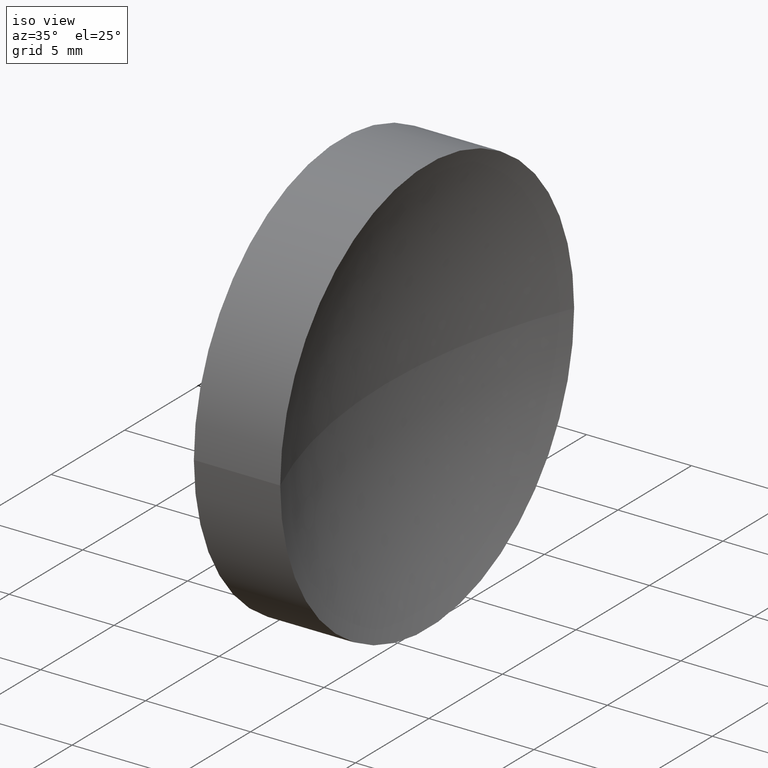
[diagram: clean part render]
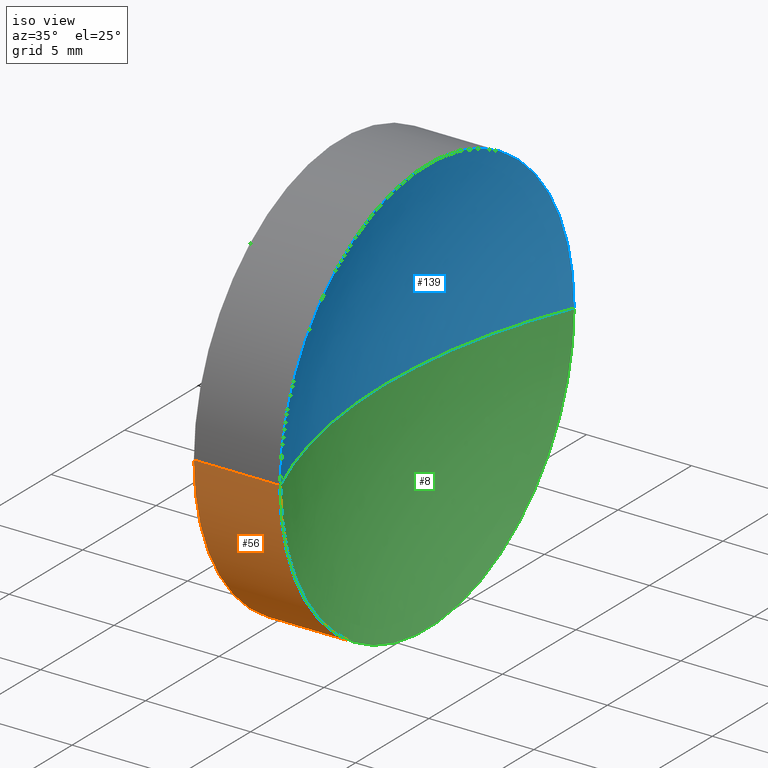
[diagram: same view with three faces highlighted in distinct colors, each labeled with its STEP entity id]
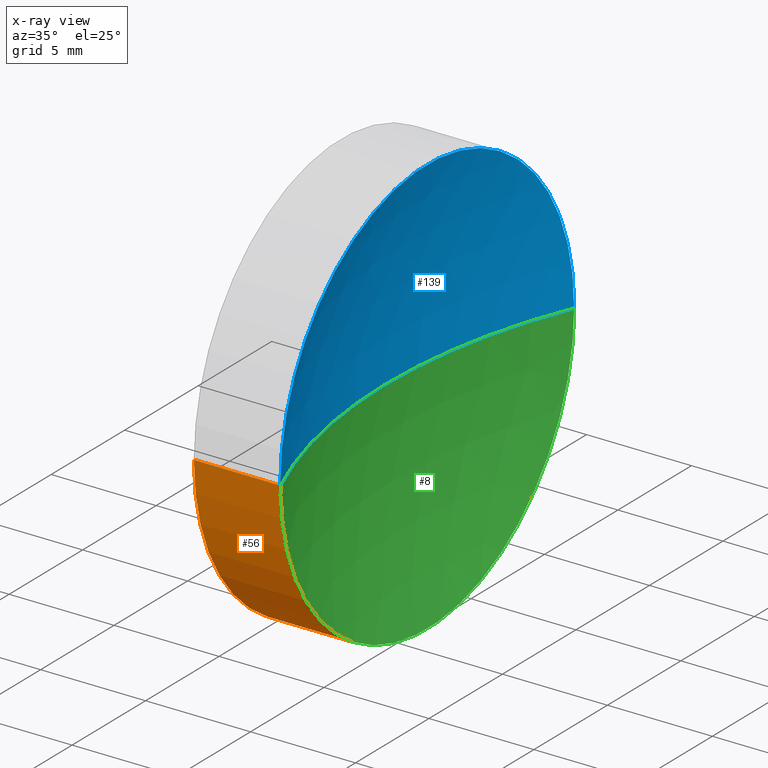
[diagram: x-ray of the same camera — body ghosted, the three highlighted faces saturated]
A machine part, iso view with three faces highlighted in distinct colors.
The next image is the same camera in x-ray (body ghosted, the three faces saturated) — at least one of them is partly hidden behind the body in this view.
Their STEP definitions:

[orange] entity #56 — the highlighted cylindrical surface (partial cylindrical patch) has radius 10 mm, axis along (-1, 0, -0).
#4 = EDGE_CURVE ( 'NONE', #126, #60, #68, .T. ) ;
#7 = LINE ( 'NONE', #50, #155 ) ;
#9 = DIRECTION ( 'NONE',  ( -1.000000000000000000, 8.116490868597533400E-016, -0.0000000000000000000 ) ) ;
#10 = CARTESIAN_POINT ( 'NONE',  ( 46.58547009932218000, 36.02329994089732400, 1.224646799147353500E-015 ) ) ;
#14 = CIRCLE ( 'NONE', #77, 10.00000000000000200 ) ;
#15 = AXIS2_PLACEMENT_3D ( 'NONE', #49, #133, #160 ) ;
#17 = EDGE_CURVE ( 'NONE', #147, #126, #14, .T. ) ;
#26 = DIRECTION ( 'NONE',  ( -1.000000000000000000, 8.116490868597533400E-016, -0.0000000000000000000 ) ) ;
#35 = EDGE_CURVE ( 'NONE', #121, #60, #70, .T. ) ;
#36 = DIRECTION ( 'NONE',  ( -1.000000000000000000, 8.116490868597533400E-016, -0.0000000000000000000 ) ) ;
#39 = CARTESIAN_POINT ( 'NONE',  ( 50.69889669901972700, 16.02329994089733100, 0.0000000000000000000 ) ) ;
#49 = CARTESIAN_POINT ( 'NONE',  ( 46.58547009932217300, 26.02329994089732800, 0.0000000000000000000 ) ) ;
#50 = CARTESIAN_POINT ( 'NONE',  ( 44.70483367244224800, 36.02329994089732400, 1.224646799147353300E-015 ) ) ;
#56 = ADVANCED_FACE ( 'NONE', ( #129 ), #58, .T. ) ;
#58 = CYLINDRICAL_SURFACE ( 'NONE', #90, 9.999999999999998200 ) ;
#59 = EDGE_CURVE ( 'NONE', #147, #121, #7, .T. ) ;
#60 = VERTEX_POINT ( 'NONE', #123 ) ;
#64 = ORIENTED_EDGE ( 'NONE', *, *, #17, .T. ) ;
#68 = LINE ( 'NONE', #120, #89 ) ;
#70 = CIRCLE ( 'NONE', #15, 9.999999999999998200 ) ;
#71 = DIRECTION ( 'NONE',  ( -6.938893903907229400E-016, -1.000000000000000000, 0.0000000000000000000 ) ) ;
#72 = CARTESIAN_POINT ( 'NONE',  ( 44.70483367244224100, 26.02329994089732800, 0.0000000000000000000 ) ) ;
#77 = AXIS2_PLACEMENT_3D ( 'NONE', #122, #104, #118 ) ;
#86 = EDGE_LOOP ( 'NONE', ( #116, #64, #95, #132 ) ) ;
#89 = VECTOR ( 'NONE', #36, 1000.000000000000000 ) ;
#90 = AXIS2_PLACEMENT_3D ( 'NONE', #72, #9, #71 ) ;
#95 = ORIENTED_EDGE ( 'NONE', *, *, #4, .T. ) ;
#104 = DIRECTION ( 'NONE',  ( -1.000000000000000000, 8.116490868597533400E-016, -0.0000000000000000000 ) ) ;
#116 = ORIENTED_EDGE ( 'NONE', *, *, #59, .F. ) ;
#118 = DIRECTION ( 'NONE',  ( -6.938893903907227400E-016, -1.000000000000000000, 0.0000000000000000000 ) ) ;
#120 = CARTESIAN_POINT ( 'NONE',  ( 44.70483367244223400, 16.02329994089733100, 0.0000000000000000000 ) ) ;
#121 = VERTEX_POINT ( 'NONE', #10 ) ;
#122 = CARTESIAN_POINT ( 'NONE',  ( 50.69889669901973400, 26.02329994089732400, 0.0000000000000000000 ) ) ;
#123 = CARTESIAN_POINT ( 'NONE',  ( 46.58547009932216600, 16.02329994089733100, 0.0000000000000000000 ) ) ;
#124 = CARTESIAN_POINT ( 'NONE',  ( 50.69889669901974800, 36.02329994089732400, 1.224646799147352700E-015 ) ) ;
#126 = VERTEX_POINT ( 'NONE', #39 ) ;
#129 = FACE_OUTER_BOUND ( 'NONE', #86, .T. ) ;
#132 = ORIENTED_EDGE ( 'NONE', *, *, #35, .F. ) ;
#133 = DIRECTION ( 'NONE',  ( -1.000000000000000000, 8.116490868597533400E-016, -0.0000000000000000000 ) ) ;
#147 = VERTEX_POINT ( 'NONE', #124 ) ;
#155 = VECTOR ( 'NONE', #26, 1000.000000000000000 ) ;
#160 = DIRECTION ( 'NONE',  ( -6.938893903907229400E-016, -1.000000000000000000, 0.0000000000000000000 ) ) ;

[blue] entity #139 — the highlighted spherical surface has radius 25.84 mm.
#16 = CARTESIAN_POINT ( 'NONE',  ( 74.52547009932219200, 26.02329994089731700, 0.0000000000000000000 ) ) ;
#18 = CIRCLE ( 'NONE', #99, 25.84000000000000300 ) ;
#24 = CARTESIAN_POINT ( 'NONE',  ( 74.52547009932219200, 26.02329994089731700, 0.0000000000000000000 ) ) ;
#30 = EDGE_LOOP ( 'NONE', ( #54, #55, #163 ) ) ;
#38 = DIRECTION ( 'NONE',  ( -9.939834562536689200E-032, -1.224646799147353200E-016, 1.000000000000000000 ) ) ;
#39 = CARTESIAN_POINT ( 'NONE',  ( 50.69889669901972700, 16.02329994089733100, 0.0000000000000000000 ) ) ;
#40 = CARTESIAN_POINT ( 'NONE',  ( 48.68547009932218100, 26.02329994089733800, 0.0000000000000000000 ) ) ;
#42 = CIRCLE ( 'NONE', #148, 10.00000000000000200 ) ;
#44 = DIRECTION ( 'NONE',  ( -1.000000000000000000, 0.0000000000000000000, 0.0000000000000000000 ) ) ;
#54 = ORIENTED_EDGE ( 'NONE', *, *, #165, .F. ) ;
#55 = ORIENTED_EDGE ( 'NONE', *, *, #65, .F. ) ;
#65 = EDGE_CURVE ( 'NONE', #126, #147, #42, .T. ) ;
#74 = DIRECTION ( 'NONE',  ( -6.938893903907227400E-016, -1.000000000000000000, 0.0000000000000000000 ) ) ;
#78 = DIRECTION ( 'NONE',  ( 0.0000000000000000000, 0.0000000000000000000, 1.000000000000000000 ) ) ;
#79 = CIRCLE ( 'NONE', #154, 25.84000000000000300 ) ;
#87 = CARTESIAN_POINT ( 'NONE',  ( 50.69889669901973400, 26.02329994089732400, 0.0000000000000000000 ) ) ;
#99 = AXIS2_PLACEMENT_3D ( 'NONE', #141, #38, #152 ) ;
#100 = SPHERICAL_SURFACE ( 'NONE', #106, 25.84000000000000300 ) ;
#106 = AXIS2_PLACEMENT_3D ( 'NONE', #16, #78, #107 ) ;
#107 = DIRECTION ( 'NONE',  ( -1.074132183267372700E-015, -1.000000000000000000, 0.0000000000000000000 ) ) ;
#111 = DIRECTION ( 'NONE',  ( 0.0000000000000000000, -0.0000000000000000000, -1.000000000000000000 ) ) ;
#124 = CARTESIAN_POINT ( 'NONE',  ( 50.69889669901974800, 36.02329994089732400, 1.224646799147352700E-015 ) ) ;
#126 = VERTEX_POINT ( 'NONE', #39 ) ;
#136 = FACE_OUTER_BOUND ( 'NONE', #30, .T. ) ;
#137 = EDGE_CURVE ( 'NONE', #126, #140, #79, .T. ) ;
#139 = ADVANCED_FACE ( 'NONE', ( #136 ), #100, .F. ) ;
#140 = VERTEX_POINT ( 'NONE', #40 ) ;
#141 = CARTESIAN_POINT ( 'NONE',  ( 74.52547009932219200, 26.02329994089731700, 0.0000000000000000000 ) ) ;
#142 = DIRECTION ( 'NONE',  ( -1.000000000000000000, 8.116490868597533400E-016, -0.0000000000000000000 ) ) ;
#147 = VERTEX_POINT ( 'NONE', #124 ) ;
#148 = AXIS2_PLACEMENT_3D ( 'NONE', #87, #142, #74 ) ;
#152 = DIRECTION ( 'NONE',  ( 0.0000000000000000000, -1.000000000000000000, -1.224646799147353200E-016 ) ) ;
#154 = AXIS2_PLACEMENT_3D ( 'NONE', #24, #111, #44 ) ;
#163 = ORIENTED_EDGE ( 'NONE', *, *, #137, .T. ) ;
#165 = EDGE_CURVE ( 'NONE', #147, #140, #18, .T. ) ;

[green] entity #8 — the highlighted spherical surface has radius 25.84 mm.
#8 = ADVANCED_FACE ( 'NONE', ( #131 ), #29, .F. ) ;
#14 = CIRCLE ( 'NONE', #77, 10.00000000000000200 ) ;
#17 = EDGE_CURVE ( 'NONE', #147, #126, #14, .T. ) ;
#18 = CIRCLE ( 'NONE', #99, 25.84000000000000300 ) ;
#24 = CARTESIAN_POINT ( 'NONE',  ( 74.52547009932219200, 26.02329994089731700, 0.0000000000000000000 ) ) ;
#29 = SPHERICAL_SURFACE ( 'NONE', #145, 25.84000000000000300 ) ;
#32 = EDGE_LOOP ( 'NONE', ( #33, #45, #113 ) ) ;
#33 = ORIENTED_EDGE ( 'NONE', *, *, #17, .F. ) ;
#38 = DIRECTION ( 'NONE',  ( -9.939834562536689200E-032, -1.224646799147353200E-016, 1.000000000000000000 ) ) ;
#39 = CARTESIAN_POINT ( 'NONE',  ( 50.69889669901972700, 16.02329994089733100, 0.0000000000000000000 ) ) ;
#40 = CARTESIAN_POINT ( 'NONE',  ( 48.68547009932218100, 26.02329994089733800, 0.0000000000000000000 ) ) ;
#44 = DIRECTION ( 'NONE',  ( -1.000000000000000000, 0.0000000000000000000, 0.0000000000000000000 ) ) ;
#45 = ORIENTED_EDGE ( 'NONE', *, *, #165, .T. ) ;
#69 = DIRECTION ( 'NONE',  ( 0.0000000000000000000, 0.0000000000000000000, 1.000000000000000000 ) ) ;
#77 = AXIS2_PLACEMENT_3D ( 'NONE', #122, #104, #118 ) ;
#79 = CIRCLE ( 'NONE', #154, 25.84000000000000300 ) ;
#99 = AXIS2_PLACEMENT_3D ( 'NONE', #141, #38, #152 ) ;
#104 = DIRECTION ( 'NONE',  ( -1.000000000000000000, 8.116490868597533400E-016, -0.0000000000000000000 ) ) ;
#111 = DIRECTION ( 'NONE',  ( 0.0000000000000000000, -0.0000000000000000000, -1.000000000000000000 ) ) ;
#113 = ORIENTED_EDGE ( 'NONE', *, *, #137, .F. ) ;
#118 = DIRECTION ( 'NONE',  ( -6.938893903907227400E-016, -1.000000000000000000, 0.0000000000000000000 ) ) ;
#119 = CARTESIAN_POINT ( 'NONE',  ( 74.52547009932219200, 26.02329994089731700, 0.0000000000000000000 ) ) ;
#122 = CARTESIAN_POINT ( 'NONE',  ( 50.69889669901973400, 26.02329994089732400, 0.0000000000000000000 ) ) ;
#124 = CARTESIAN_POINT ( 'NONE',  ( 50.69889669901974800, 36.02329994089732400, 1.224646799147352700E-015 ) ) ;
#126 = VERTEX_POINT ( 'NONE', #39 ) ;
#131 = FACE_OUTER_BOUND ( 'NONE', #32, .T. ) ;
#134 = DIRECTION ( 'NONE',  ( -1.074132183267372700E-015, -1.000000000000000000, 0.0000000000000000000 ) ) ;
#137 = EDGE_CURVE ( 'NONE', #126, #140, #79, .T. ) ;
#140 = VERTEX_POINT ( 'NONE', #40 ) ;
#141 = CARTESIAN_POINT ( 'NONE',  ( 74.52547009932219200, 26.02329994089731700, 0.0000000000000000000 ) ) ;
#145 = AXIS2_PLACEMENT_3D ( 'NONE', #119, #69, #134 ) ;
#147 = VERTEX_POINT ( 'NONE', #124 ) ;
#152 = DIRECTION ( 'NONE',  ( 0.0000000000000000000, -1.000000000000000000, -1.224646799147353200E-016 ) ) ;
#154 = AXIS2_PLACEMENT_3D ( 'NONE', #24, #111, #44 ) ;
#165 = EDGE_CURVE ( 'NONE', #147, #140, #18, .T. ) ;